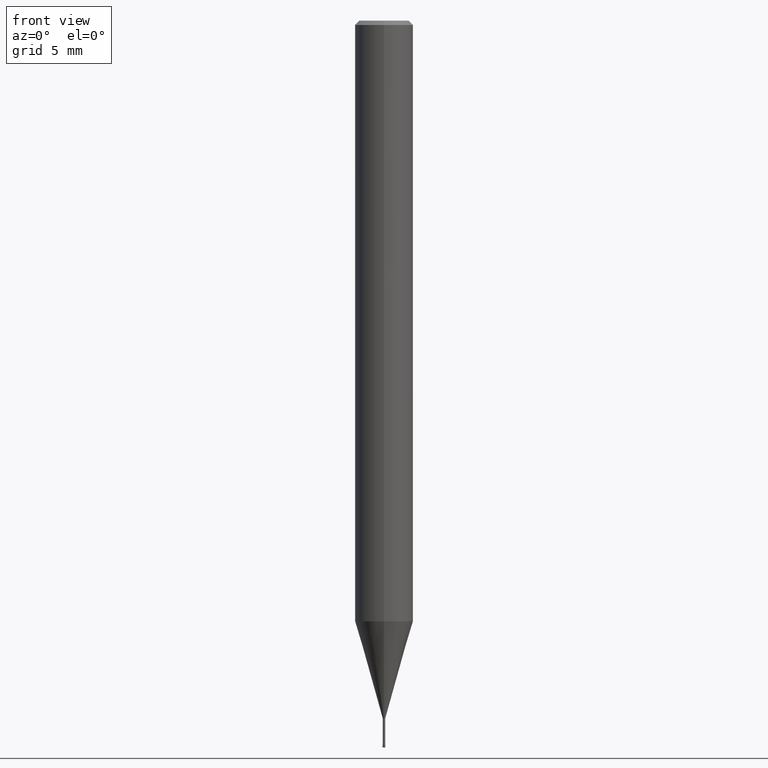
[diagram: clean part render]
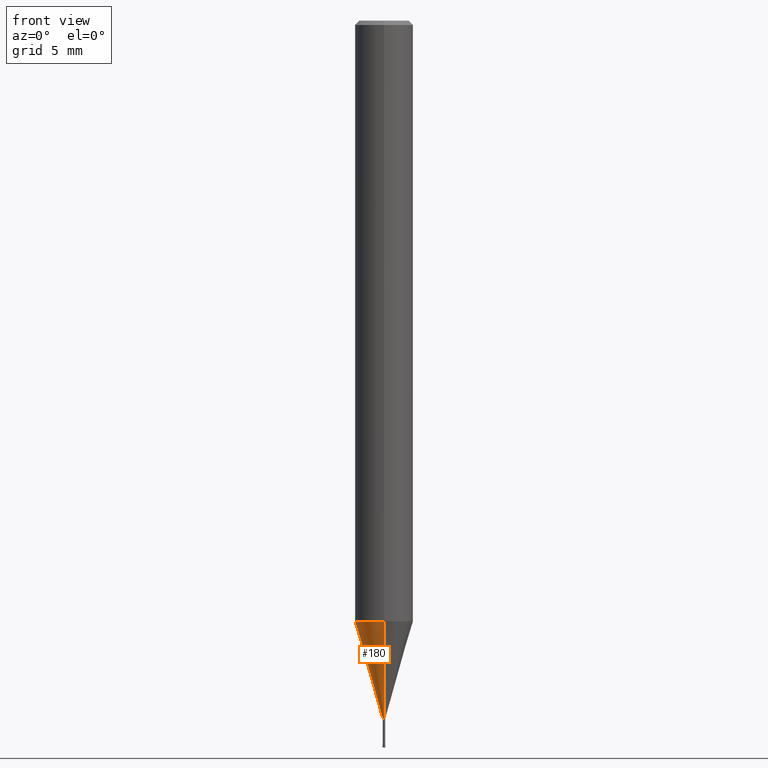
[diagram: same view with one face highlighted and labeled with its STEP entity id]
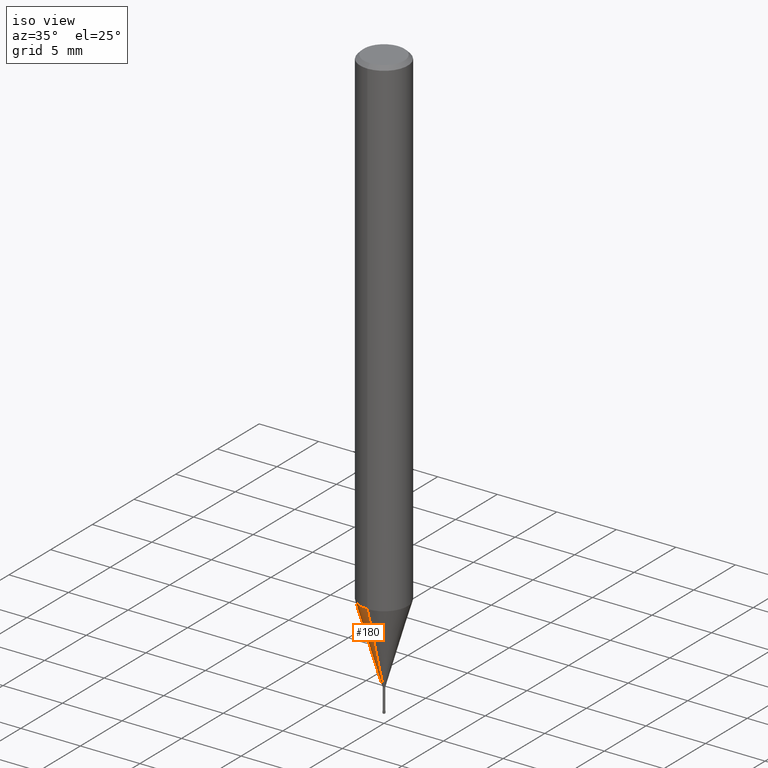
[diagram: same view with one face highlighted and labeled with its STEP entity id]
A machine part, front view. The second image highlights one B-rep face of the part: STEP entity #180.
A second angle (iso view) of the same face is appended — the face is thin or edge-on in the first view.
In plain terms, the highlighted conical surface has half-angle 16.001 deg.
Its self-contained STEP definition (entity closure, byte-faithful):
#130=VERTEX_POINT('',#287);
#132=VERTEX_POINT('',#289);
#140=EDGE_CURVE('',#132,#154,#298,.T.);
#142=EDGE_CURVE('',#204,#132,#300,.T.);
#154=VERTEX_POINT('',#313);
#156=EDGE_CURVE('',#204,#130,#315,.T.);
#180=ADVANCED_FACE('',(#343),#344,.T.);
#204=VERTEX_POINT('',#371);
#230=EDGE_CURVE('',#154,#130,#401,.T.);
#287=CARTESIAN_POINT('',(0.0,0.08495,-48.0));
#289=CARTESIAN_POINT('',(2.44915147732706E-016,-1.99995,-41.322));
#298=CIRCLE('',#470,1.99995);
#300=LINE('',#473,#474);
#313=CARTESIAN_POINT('',(0.0,1.99995,-41.322));
#315=CIRCLE('',#493,0.08495);
#343=FACE_OUTER_BOUND('',#526,.T.);
#344=CONICAL_SURFACE('',#527,1.04245,0.279268497676986);
#371=CARTESIAN_POINT('',(1.04030309757211E-017,-0.08495,-48.0));
#401=LINE('',#600,#601);
#470=AXIS2_PLACEMENT_3D('',#662,#663,#664);
#473=CARTESIAN_POINT('',(1.27659089354214E-016,-1.04245,-44.661));
#474=VECTOR('',#665,1.0);
#493=AXIS2_PLACEMENT_3D('',#678,#679,#680);
#526=EDGE_LOOP('',(#721,#722,#723,#724));
#527=AXIS2_PLACEMENT_3D('',#725,#726,#727);
#600=CARTESIAN_POINT('',(-1.27659089354214E-016,1.04245,-44.661));
#601=VECTOR('',#802,1.0);
#662=CARTESIAN_POINT('',(0.0,0.0,-41.322));
#663=DIRECTION('',(0.0,0.0,-1.0));
#664=DIRECTION('',(0.0,1.0,0.0));
#665=DIRECTION('',(3.37565876916665E-017,-0.275652560402792,0.961257335963365));
#678=CARTESIAN_POINT('',(0.0,0.0,-48.0));
#679=DIRECTION('',(0.0,0.0,-1.0));
#680=DIRECTION('',(0.0,1.0,0.0));
#721=ORIENTED_EDGE('',*,*,#230,.T.);
#722=ORIENTED_EDGE('',*,*,#156,.F.);
#723=ORIENTED_EDGE('',*,*,#142,.T.);
#724=ORIENTED_EDGE('',*,*,#140,.T.);
#725=CARTESIAN_POINT('',(0.0,0.0,-44.661));
#726=DIRECTION('',(-0.0,-0.0,1.0));
#727=DIRECTION('',(0.0,1.0,0.0));
#802=DIRECTION('',(3.37565876916665E-017,-0.275652560402792,-0.961257335963365));